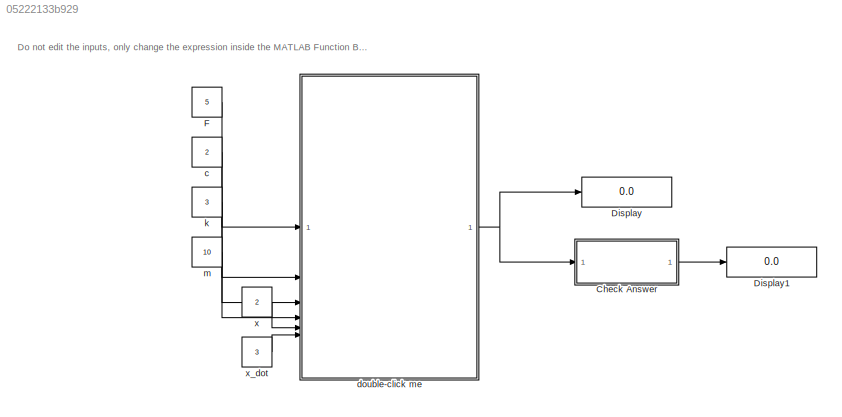
MODEL slx_05222133b929
KIND model
CONFIG AbsTol = auto
CONFIG EnableMultiTasking = off
CONFIG FixedStep = auto
CONFIG MaxStep = auto
CONFIG MinStep = auto
CONFIG RelTol = 1e-3
CONFIG SampleTimeConstraint = Unconstrained
CONFIG SolverName = VariableStepAuto
CONFIG StartTime = 0.0
CONFIG StopTime = 10.0
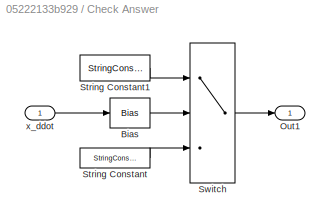
BLOCK [SubSystem] Check Answer
BLOCK [Bias] Check Answer/Bias
  Bias = 0.7
  SaturateOnIntegerOverflow = off
BLOCK [Outport] Check Answer/Out1
BLOCK [StringConstant] Check Answer/String Constant
  String = "Correcto"
BLOCK [StringConstant] Check Answer/String Constant1
  String = "Incorrecto"
BLOCK [Switch] Check Answer/Switch
  Criteria = u2 ~= 0
  InputSameDT = off
  SaturateOnIntegerOverflow = off
BLOCK [Inport] Check Answer/x_ddot
BLOCK [Display] Display
  Decimation = 1
BLOCK [Display] Display1
  Decimation = 1
BLOCK [Constant] F
  Value = 5
BLOCK [Constant] c
  Value = 2
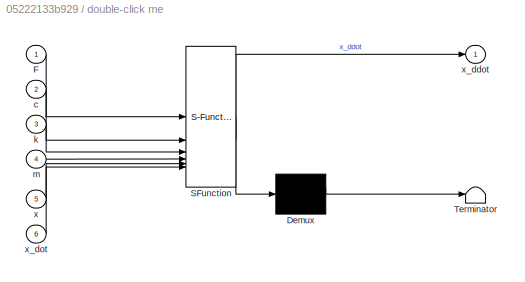
BLOCK [SubSystem] double-click me
  ErrorFcn = Stateflow.Translate.translate
  PermitHierarchicalResolution = ExplicitOnly
  SFBlockType = MATLAB Function
  TreatAsAtomicUnit = on
BLOCK [Demux] double-click me/ Demux 
  Outputs = 1
BLOCK [S-Function] double-click me/ SFunction 
  EnableBusSupport = off
  FunctionName = sf_sfun
  PortCounts = [6 2]
  SFcnIsStateOwnerBlock = off
  SFunctionDeploymentMode = off
  Tag = Stateflow S-Function 2
BLOCK [Terminator] double-click me/ Terminator 
BLOCK [Inport] double-click me/F
BLOCK [Inport] double-click me/c
  Port = 2
BLOCK [Inport] double-click me/k
  Port = 3
BLOCK [Inport] double-click me/m
  Port = 4
BLOCK [Inport] double-click me/x
  Port = 5
BLOCK [Outport] double-click me/x_ddot
BLOCK [Inport] double-click me/x_dot
  Port = 6
BLOCK [Constant] k
  Value = 3
BLOCK [Constant] m
  Value = 10
BLOCK [Constant] x
  Value = 2
BLOCK [Constant] x_dot
  Value = 3
ANNOTATION (root): Do not edit the inputs, only change the expression inside the MATLAB Function Block
LINE Check Answer/Bias:1 -> Check Answer/Switch:2
LINE Check Answer/String Constant1:1 -> Check Answer/Switch:1
LINE Check Answer/String Constant:1 -> Check Answer/Switch:3
LINE Check Answer/Switch:1 -> Check Answer/Out1:1
LINE Check Answer/x_ddot:1 -> Check Answer/Bias:1
LINE Check Answer:1 -> Display1:1
LINE F:1 -> double-click me:1
LINE c:1 -> double-click me:2
NET double-click me:1 -> Check Answer:1, Display:1
LINE k:1 -> double-click me:3
LINE m:1 -> double-click me:4
LINE x:1 -> double-click me:5
LINE x_dot:1 -> double-click me:6
note: NET lines group one-source signal fan-out (src -> all destinations, sorted); 1:1 wires keep LINE
CHART double-click me states=1 transitions=1
  STATE_LABEL 'eML_blk_kernel()'
  STATE_LABEL 'SCRIPT:\nfunction x_ddot = fcn(F,c,k,m,x,x_dot)\n\n   % Replace NaN with your expression for x_ddot here in terms of the inputs\n  NaN\n   \nend\n\n'
CHART  states=0 transitions=0
